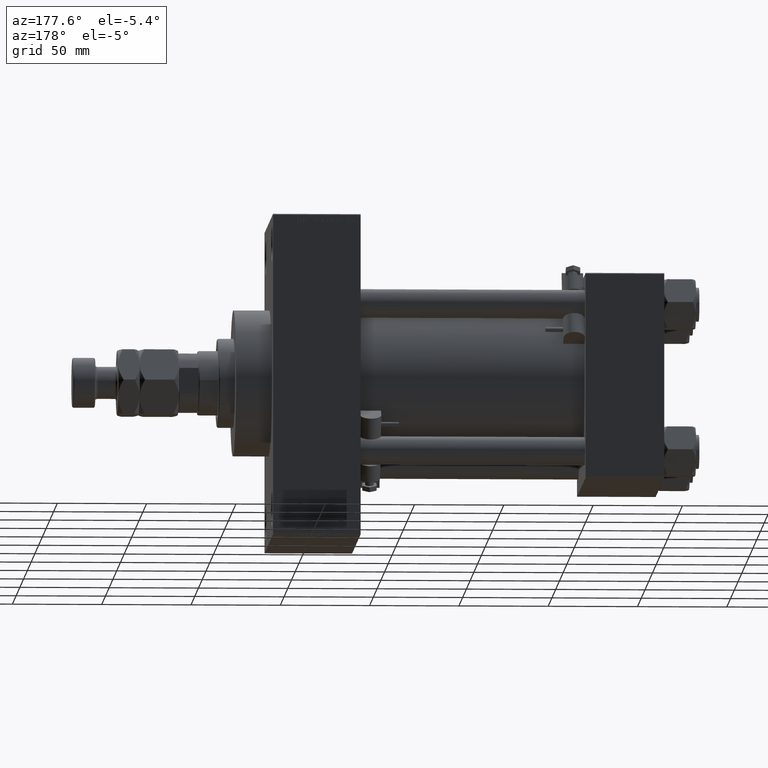
[diagram: clean part render]
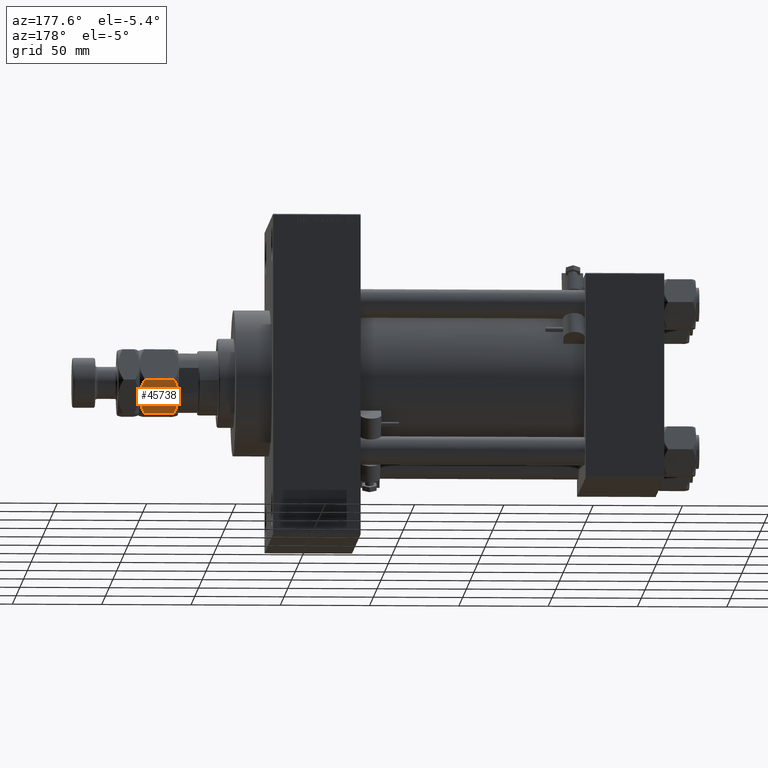
[diagram: same view with one face highlighted and labeled with its STEP entity id]
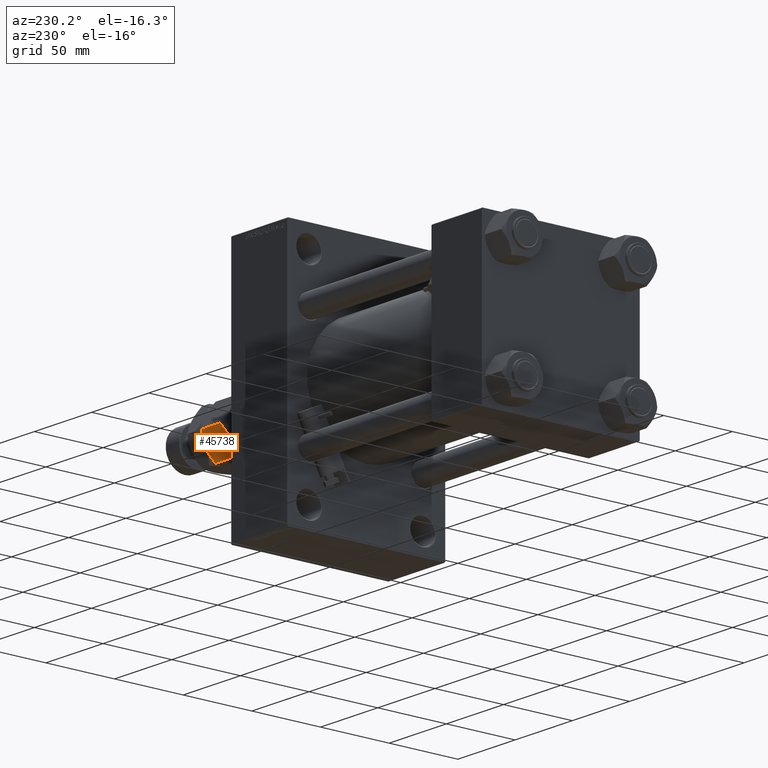
[diagram: same view with one face highlighted and labeled with its STEP entity id]
A machine part, auxiliary view. The second image highlights one B-rep face of the part: STEP entity #45738.
A second angle (auxiliary view) of the same face is appended — the face is thin or edge-on in the first view.
In plain terms, the highlighted planar face has unit normal (0, -0.866, 0.5).
Its self-contained STEP definition (entity closure, byte-faithful):
#505 = DIRECTION ( 'NONE',  ( 0.8660254037844387076, -0.4999999999999999445, 0.000000000000000000 ) ) ;
#1003 = CARTESIAN_POINT ( 'NONE',  ( 16.58866960374795241, 11.20713682960488100, 20.03022229336509596 ) ) ;
#1942 = CARTESIAN_POINT ( 'NONE',  ( 9.394125676616230436, 15.36090870263096875, 22.00000000000000000 ) ) ;
#3047 = VERTEX_POINT ( 'NONE', #36919 ) ;
#3074 = CARTESIAN_POINT ( 'NONE',  ( 2.854601888853809388, 19.13650452186755757, 1.277383077889868046 ) ) ;
#3197 = EDGE_CURVE ( 'NONE', #3047, #7370, #20293, .T. ) ;
#3342 = CARTESIAN_POINT ( 'NONE',  ( 16.59030399953601531, 11.20619321075668218, 1.970721325483050235 ) ) ;
#4320 = DIRECTION ( 'NONE',  ( -0.4999999999999999445, -0.8660254037844387076, 0.000000000000000000 ) ) ;
#4731 = DIRECTION ( 'NONE',  ( -0.000000000000000000, -0.000000000000000000, -1.000000000000000000 ) ) ;
#5766 = CARTESIAN_POINT ( 'NONE',  ( 12.14199022028319774, 13.77442836864821629, 21.65943689774472602 ) ) ;
#6409 = ORIENTED_EDGE ( 'NONE', *, *, #38636, .F. ) ;
#7153 = CARTESIAN_POINT ( 'NONE',  ( 8.999999999999998224, 15.58845726811989429, 0.000000000000000000 ) ) ;
#7173 = CARTESIAN_POINT ( 'NONE',  ( 15.13928418966203004, 12.04393988858690179, 1.272574701504239680 ) ) ;
#7370 = VERTEX_POINT ( 'NONE', #50428 ) ;
#8667 = CARTESIAN_POINT ( 'NONE',  ( 10.58425150785354418, 14.67378923359658138, 21.91305310988184374 ) ) ;
#10992 = CARTESIAN_POINT ( 'NONE',  ( 7.023280245922045140, 16.72971695024924443, 0.1387225990985735125 ) ) ;
#12707 = ORIENTED_EDGE ( 'NONE', *, *, #43597, .F. ) ;
#13681 = CARTESIAN_POINT ( 'NONE',  ( 12.90267270303527525, 13.33524813246346952, 21.46291444417098759 ) ) ;
#14540 = CARTESIAN_POINT ( 'NONE',  ( 18.00000000000000000, 10.39230484541326227, 22.00000000000000000 ) ) ;
#15569 = ORIENTED_EDGE ( 'NONE', *, *, #19935, .F. ) ;
#16577 = CARTESIAN_POINT ( 'NONE',  ( 15.14539811114618573, 12.04041001437222214, 20.72261692211012729 ) ) ;
#17124 = CARTESIAN_POINT ( 'NONE',  ( -2.339913671058857151E-16, 20.78460969082652454, 19.21539030917348256 ) ) ;
#17513 = CARTESIAN_POINT ( 'NONE',  ( 9.000000000000000000, 15.58845726811989074, 22.00000000000000000 ) ) ;
#18387 = CARTESIAN_POINT ( 'NONE',  ( 9.000000000000000000, 15.58845726811989074, 22.00000000000000000 ) ) ;
#18633 = CARTESIAN_POINT ( 'NONE',  ( 5.097327296964719423, 17.84166640377631197, 0.5370855558290075216 ) ) ;
#18883 = CARTESIAN_POINT ( 'NONE',  ( 7.415748492146453152, 16.50312530264320898, 0.08694689011815050217 ) ) ;
#19125 = CARTESIAN_POINT ( 'NONE',  ( 18.00000000000000000, 10.39230484541326227, 22.00000000000000000 ) ) ;
#19320 = B_SPLINE_CURVE_WITH_KNOTS ( 'NONE', 3,
 ( #50026, #29364, #3074, #18633, #45953, #10992, #18883, #26545, #42132, #7153 ),
 .UNSPECIFIED., .F., .F.,
 ( 4, 2, 2, 2, 4 ),
 ( 2.544307986815284985E-07, 0.005386537354063076002, 0.008079678815695275074, 0.009426249546511372007, 0.01077282027732746894 ),
 .UNSPECIFIED. ) ;
#19935 = EDGE_CURVE ( 'NONE', #30015, #20497, #47441, .T. ) ;
#20199 = CARTESIAN_POINT ( 'NONE',  ( 1.409696000463982912, 19.97072132548310108, 20.02927867451694510 ) ) ;
#20293 = LINE ( 'NONE', #39696, #31778 ) ;
#20497 = VERTEX_POINT ( 'NONE', #18387 ) ;
#20608 = EDGE_CURVE ( 'NONE', #7370, #48739, #19320, .T. ) ;
#21334 = CARTESIAN_POINT ( 'NONE',  ( 10.97671975407794953, 14.44719758599053705, 21.86127740090141458 ) ) ;
#21837 = CARTESIAN_POINT ( 'NONE',  ( 18.00000000000000000, 10.39230484541326227, 19.21539030917347901 ) ) ;
#21939 = B_SPLINE_CURVE_WITH_KNOTS ( 'NONE', 3,
 ( #24528, #32935, #27843, #48002, #20199, #17124 ),
 .UNSPECIFIED., .F., .F.,
 ( 4, 2, 4 ),
 ( 0.01077282027732746894, 0.01612137750481873466, 0.02146993473231000385 ),
 .UNSPECIFIED. ) ;
#24078 = EDGE_LOOP ( 'NONE', ( #33527, #47632, #6409, #15569, #36927, #12707 ) ) ;
#24528 = CARTESIAN_POINT ( 'NONE',  ( 9.000000000000000000, 15.58845726811989074, 22.00000000000000000 ) ) ;
#26538 = LINE ( 'NONE', #14540, #46034 ) ;
#26545 = CARTESIAN_POINT ( 'NONE',  ( 8.209538469370125213, 16.04483044561309768, 0.01733285647408576435 ) ) ;
#26569 = CARTESIAN_POINT ( 'NONE',  ( 18.00000000000000000, 10.39230484541326227, 2.784609690826518325 ) ) ;
#27843 = CARTESIAN_POINT ( 'NONE',  ( 5.895697476400520110, 17.38072716576608201, 21.72360409287842131 ) ) ;
#28301 = CARTESIAN_POINT ( 'NONE',  ( 9.790461530629873010, 15.13208409062669624, 21.98266714352591578 ) ) ;
#29364 = CARTESIAN_POINT ( 'NONE',  ( 1.411330396252046260, 19.96977770663490759, 1.969777706634896708 ) ) ;
#29889 = CARTESIAN_POINT ( 'NONE',  ( 12.10430252359947900, 13.79618737047370125, 0.2763959071215808527 ) ) ;
#30015 = VERTEX_POINT ( 'NONE', #30819 ) ;
#30819 = CARTESIAN_POINT ( 'NONE',  ( 18.00000000000000000, 10.39230484541326227, 19.21539030917347901 ) ) ;
#31778 = VECTOR ( 'NONE', #4731, 1000.000000000000000 ) ;
#31862 = EDGE_CURVE ( 'NONE', #30015, #45043, #26538, .T. ) ;
#32935 = CARTESIAN_POINT ( 'NONE',  ( 7.434539168300457135, 16.49227650070744033, 22.00000000000000711 ) ) ;
#33083 = B_SPLINE_CURVE_WITH_KNOTS ( 'NONE', 3,
 ( #34472, #42395, #29889, #7173, #3342, #26569 ),
 .UNSPECIFIED., .F., .F.,
 ( 4, 2, 4 ),
 ( 0.01077282027732746894, 0.01612137750481873466, 0.02146993473231000038 ),
 .UNSPECIFIED. ) ;
#33527 = ORIENTED_EDGE ( 'NONE', *, *, #20608, .F. ) ;
#34472 = CARTESIAN_POINT ( 'NONE',  ( 8.999999999999998224, 15.58845726811989429, 0.000000000000000000 ) ) ;
#36919 = CARTESIAN_POINT ( 'NONE',  ( -2.339913671058857151E-16, 20.78460969082652454, 19.21539030917348256 ) ) ;
#36927 = ORIENTED_EDGE ( 'NONE', *, *, #31862, .T. ) ;
#37834 = AXIS2_PLACEMENT_3D ( 'NONE', #19125, #4320, #505 ) ;
#38131 = CARTESIAN_POINT ( 'NONE',  ( 18.00000000000000000, 10.39230484541326227, 2.784609690826518325 ) ) ;
#38636 = EDGE_CURVE ( 'NONE', #20497, #3047, #21939, .T. ) ;
#39018 = PLANE ( 'NONE',  #37834 ) ;
#39276 = FACE_OUTER_BOUND ( 'NONE', #24078, .T. ) ;
#39696 = CARTESIAN_POINT ( 'NONE',  ( 0.000000000000000000, 20.78460969082652454, 22.00000000000000000 ) ) ;
#42132 = CARTESIAN_POINT ( 'NONE',  ( 8.605874323383767788, 15.81600583360882162, -3.502481236896532691E-15 ) ) ;
#42395 = CARTESIAN_POINT ( 'NONE',  ( 10.56546083169953754, 14.68463803553234825, -3.293264098924718535E-15 ) ) ;
#43597 = EDGE_CURVE ( 'NONE', #48739, #45043, #33083, .T. ) ;
#45043 = VERTEX_POINT ( 'NONE', #38131 ) ;
#45738 = ADVANCED_FACE ( 'NONE', ( #39276 ), #39018, .F. ) ;
#45953 = CARTESIAN_POINT ( 'NONE',  ( 5.858009779716799592, 17.40248616759157230, 0.3405631022552657039 ) ) ;
#46034 = VECTOR ( 'NONE', #46201, 1000.000000000000000 ) ;
#46201 = DIRECTION ( 'NONE',  ( -0.000000000000000000, -0.000000000000000000, -1.000000000000000000 ) ) ;
#46271 = CARTESIAN_POINT ( 'NONE',  ( 8.999999999999998224, 15.58845726811989429, 0.000000000000000000 ) ) ;
#47441 = B_SPLINE_CURVE_WITH_KNOTS ( 'NONE', 3,
 ( #21837, #1003, #16577, #13681, #5766, #21334, #8667, #28301, #1942, #17513 ),
 .UNSPECIFIED., .F., .F.,
 ( 4, 2, 2, 2, 4 ),
 ( 2.544307986796311447E-07, 0.005386537354063075135, 0.008079678815695273339, 0.009426249546511372007, 0.01077282027732746894 ),
 .UNSPECIFIED. ) ;
#47632 = ORIENTED_EDGE ( 'NONE', *, *, #3197, .F. ) ;
#48002 = CARTESIAN_POINT ( 'NONE',  ( 2.860715810337963738, 19.13297464765287259, 20.72742529849575277 ) ) ;
#48739 = VERTEX_POINT ( 'NONE', #46271 ) ;
#50026 = CARTESIAN_POINT ( 'NONE',  ( -1.065242688631141971E-15, 20.78460969082652454, 2.784609690826513440 ) ) ;
#50428 = CARTESIAN_POINT ( 'NONE',  ( -1.065242688631141971E-15, 20.78460969082652454, 2.784609690826513440 ) ) ;